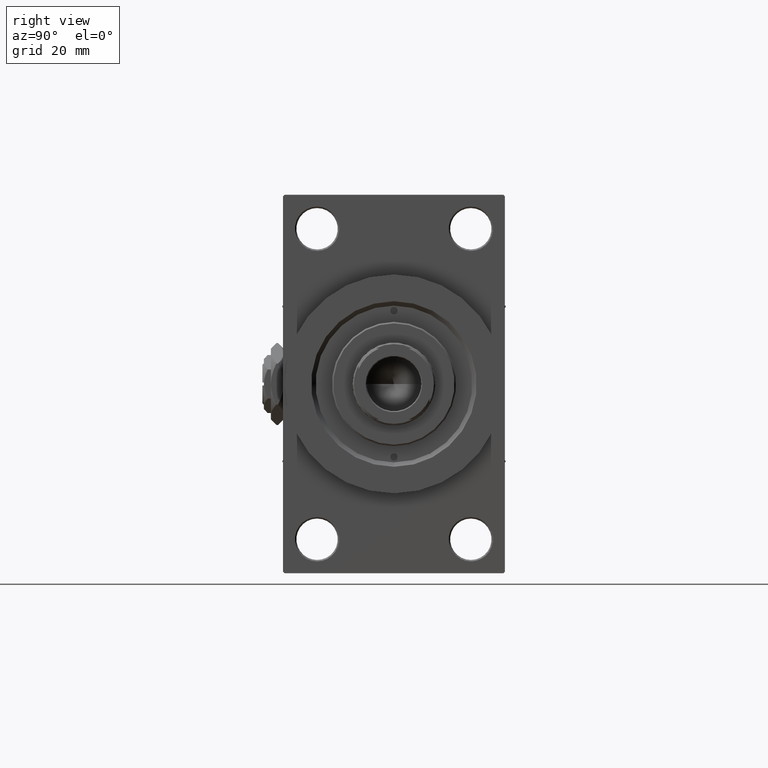
[diagram: clean part render]
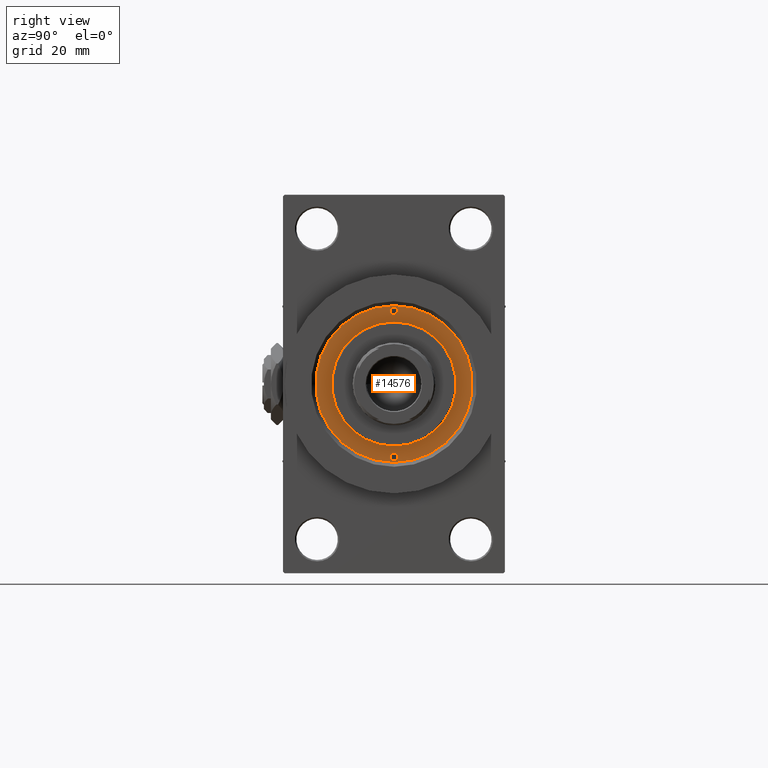
[diagram: same view with one face highlighted and labeled with its STEP entity id]
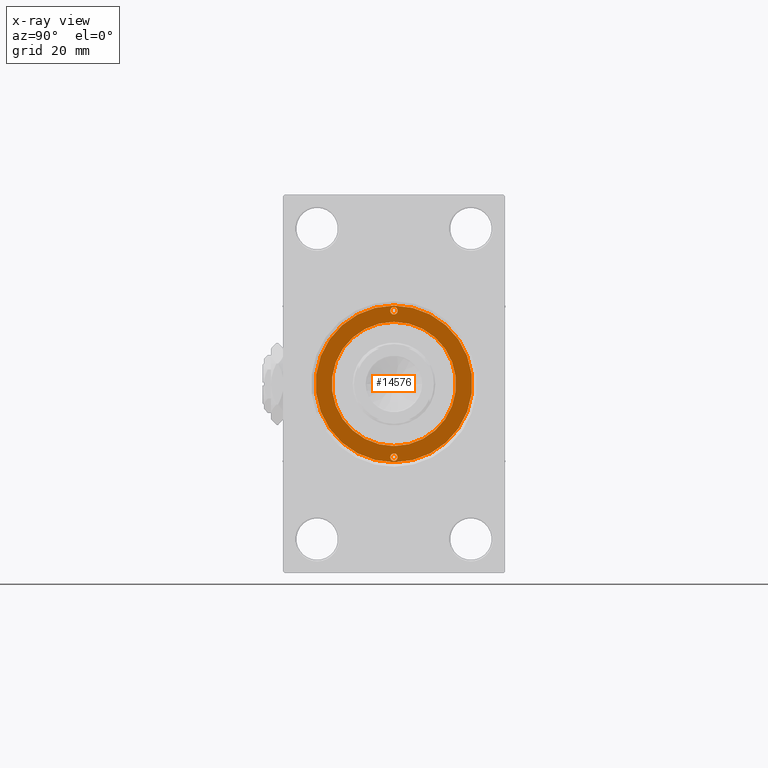
[diagram: x-ray of the same camera — body ghosted, the highlighted face saturated]
A machine part, right view. The second image highlights one B-rep face of the part: STEP entity #14576.
The next image is the same camera in x-ray: the body ghosted, the highlighted face saturated — about 0% of this face is hidden behind the body in this view.
In plain terms, the highlighted planar face has unit normal (1, -0, -0).
Its self-contained STEP definition (entity closure, byte-faithful):
#205 = CARTESIAN_POINT ( 'NONE',  ( 23.50000000000000355, 1.530808498934188612E-16, 43.25999999999999801 ) ) ;
#296 = CIRCLE ( 'NONE', #35260, 26.50000000000000355 ) ;
#326 = FACE_BOUND ( 'NONE', #9752, .T. ) ;
#1049 = CARTESIAN_POINT ( 'NONE',  ( -26.00000000000000000, 1.530808498934188612E-16, 43.25999999999999801 ) ) ;
#2781 = CARTESIAN_POINT ( 'NONE',  ( 21.00000000000000000, 2.571758278209441661E-15, 43.25999999999999801 ) ) ;
#2972 = EDGE_CURVE ( 'NONE', #6021, #33407, #17340, .T. ) ;
#3818 = PLANE ( 'NONE',  #26331 ) ;
#4669 = CARTESIAN_POINT ( 'NONE',  ( 0.000000000000000000, 0.000000000000000000, 43.25999999999999801 ) ) ;
#4983 = DIRECTION ( 'NONE',  ( -0.000000000000000000, -0.000000000000000000, 1.000000000000000000 ) ) ;
#5029 = VERTEX_POINT ( 'NONE', #1049 ) ;
#5515 = ORIENTED_EDGE ( 'NONE', *, *, #10786, .F. ) ;
#6021 = VERTEX_POINT ( 'NONE', #10981 ) ;
#8260 = ORIENTED_EDGE ( 'NONE', *, *, #44557, .F. ) ;
#9752 = EDGE_LOOP ( 'NONE', ( #37822, #9832 ) ) ;
#9832 = ORIENTED_EDGE ( 'NONE', *, *, #12233, .F. ) ;
#10285 = DIRECTION ( 'NONE',  ( 0.000000000000000000, 0.000000000000000000, 1.000000000000000000 ) ) ;
#10786 = EDGE_CURVE ( 'NONE', #33407, #6021, #29424, .T. ) ;
#10981 = CARTESIAN_POINT ( 'NONE',  ( -21.00000000000000000, 0.000000000000000000, 43.25999999999999801 ) ) ;
#11361 = CIRCLE ( 'NONE', #12957, 26.50000000000000355 ) ;
#12046 = DIRECTION ( 'NONE',  ( 0.000000000000000000, 0.000000000000000000, 1.000000000000000000 ) ) ;
#12233 = EDGE_CURVE ( 'NONE', #41482, #42705, #39806, .T. ) ;
#12618 = CARTESIAN_POINT ( 'NONE',  ( -23.50000000000000355, 0.000000000000000000, 43.25999999999999801 ) ) ;
#12957 = AXIS2_PLACEMENT_3D ( 'NONE', #28909, #10285, #14476 ) ;
#13298 = CIRCLE ( 'NONE', #29155, 1.249999999999997558 ) ;
#14476 = DIRECTION ( 'NONE',  ( 1.000000000000000000, 0.000000000000000000, 0.000000000000000000 ) ) ;
#14576 = ADVANCED_FACE ( 'NONE', ( #34364, #326, #45810, #15245 ), #3818, .T. ) ;
#15245 = FACE_OUTER_BOUND ( 'NONE', #34562, .T. ) ;
#15492 = DIRECTION ( 'NONE',  ( 1.000000000000000000, 0.000000000000000000, -0.000000000000000000 ) ) ;
#17340 = CIRCLE ( 'NONE', #38752, 21.00000000000000000 ) ;
#17351 = DIRECTION ( 'NONE',  ( -0.000000000000000000, -0.000000000000000000, 1.000000000000000000 ) ) ;
#18171 = EDGE_LOOP ( 'NONE', ( #42121, #5515 ) ) ;
#19517 = DIRECTION ( 'NONE',  ( 1.000000000000000000, 0.000000000000000000, 0.000000000000000000 ) ) ;
#21112 = EDGE_CURVE ( 'NONE', #28003, #41089, #296, .T. ) ;
#21294 = CARTESIAN_POINT ( 'NONE',  ( -26.50000000000000355, 0.000000000000000000, 43.25999999999999801 ) ) ;
#22707 = CARTESIAN_POINT ( 'NONE',  ( 0.000000000000000000, 0.000000000000000000, 43.25999999999999801 ) ) ;
#22803 = DIRECTION ( 'NONE',  ( 0.000000000000000000, 0.000000000000000000, 1.000000000000000000 ) ) ;
#24085 = CARTESIAN_POINT ( 'NONE',  ( 24.75000000000000000, 0.000000000000000000, 43.25999999999999801 ) ) ;
#24236 = VERTEX_POINT ( 'NONE', #12618 ) ;
#24536 = CIRCLE ( 'NONE', #45103, 1.249999999999997558 ) ;
#25268 = DIRECTION ( 'NONE',  ( -0.000000000000000000, -0.000000000000000000, 1.000000000000000000 ) ) ;
#26331 = AXIS2_PLACEMENT_3D ( 'NONE', #22707, #12046, #15492 ) ;
#26851 = CARTESIAN_POINT ( 'NONE',  ( -24.75000000000000000, 0.000000000000000000, 43.25999999999999801 ) ) ;
#27645 = CARTESIAN_POINT ( 'NONE',  ( 24.75000000000000000, 0.000000000000000000, 43.25999999999999801 ) ) ;
#28003 = VERTEX_POINT ( 'NONE', #21294 ) ;
#28566 = EDGE_CURVE ( 'NONE', #42705, #41482, #13298, .T. ) ;
#28909 = CARTESIAN_POINT ( 'NONE',  ( 0.000000000000000000, 0.000000000000000000, 43.25999999999999801 ) ) ;
#29155 = AXIS2_PLACEMENT_3D ( 'NONE', #27645, #39077, #31118 ) ;
#29424 = CIRCLE ( 'NONE', #46889, 21.00000000000000000 ) ;
#30483 = CIRCLE ( 'NONE', #43217, 1.249999999999997558 ) ;
#30942 = CARTESIAN_POINT ( 'NONE',  ( 0.000000000000000000, 0.000000000000000000, 43.25999999999999801 ) ) ;
#31118 = DIRECTION ( 'NONE',  ( 1.000000000000000000, 0.000000000000000000, 0.000000000000000000 ) ) ;
#31872 = EDGE_CURVE ( 'NONE', #5029, #24236, #24536, .T. ) ;
#33407 = VERTEX_POINT ( 'NONE', #2781 ) ;
#34195 = EDGE_LOOP ( 'NONE', ( #8260, #34809 ) ) ;
#34364 = FACE_BOUND ( 'NONE', #34195, .T. ) ;
#34562 = EDGE_LOOP ( 'NONE', ( #36783, #39811 ) ) ;
#34809 = ORIENTED_EDGE ( 'NONE', *, *, #31872, .F. ) ;
#35260 = AXIS2_PLACEMENT_3D ( 'NONE', #4669, #22803, #38456 ) ;
#35559 = CARTESIAN_POINT ( 'NONE',  ( 26.50000000000000355, 3.245314017740486554E-15, 43.25999999999999801 ) ) ;
#36723 = DIRECTION ( 'NONE',  ( 1.000000000000000000, 0.000000000000000000, 0.000000000000000000 ) ) ;
#36783 = ORIENTED_EDGE ( 'NONE', *, *, #21112, .T. ) ;
#37151 = DIRECTION ( 'NONE',  ( 0.000000000000000000, 0.000000000000000000, 1.000000000000000000 ) ) ;
#37174 = CARTESIAN_POINT ( 'NONE',  ( -24.75000000000000000, 0.000000000000000000, 43.25999999999999801 ) ) ;
#37822 = ORIENTED_EDGE ( 'NONE', *, *, #28566, .F. ) ;
#38456 = DIRECTION ( 'NONE',  ( 1.000000000000000000, 0.000000000000000000, 0.000000000000000000 ) ) ;
#38752 = AXIS2_PLACEMENT_3D ( 'NONE', #49059, #37151, #45073 ) ;
#39026 = DIRECTION ( 'NONE',  ( 1.000000000000000000, 0.000000000000000000, 0.000000000000000000 ) ) ;
#39077 = DIRECTION ( 'NONE',  ( -0.000000000000000000, -0.000000000000000000, 1.000000000000000000 ) ) ;
#39150 = DIRECTION ( 'NONE',  ( 0.000000000000000000, 0.000000000000000000, 1.000000000000000000 ) ) ;
#39806 = CIRCLE ( 'NONE', #46085, 1.249999999999997558 ) ;
#39811 = ORIENTED_EDGE ( 'NONE', *, *, #42064, .T. ) ;
#41089 = VERTEX_POINT ( 'NONE', #35559 ) ;
#41482 = VERTEX_POINT ( 'NONE', #205 ) ;
#42064 = EDGE_CURVE ( 'NONE', #41089, #28003, #11361, .T. ) ;
#42121 = ORIENTED_EDGE ( 'NONE', *, *, #2972, .F. ) ;
#42705 = VERTEX_POINT ( 'NONE', #43220 ) ;
#43217 = AXIS2_PLACEMENT_3D ( 'NONE', #26851, #4983, #39026 ) ;
#43220 = CARTESIAN_POINT ( 'NONE',  ( 26.00000000000000000, 0.000000000000000000, 43.25999999999999801 ) ) ;
#44557 = EDGE_CURVE ( 'NONE', #24236, #5029, #30483, .T. ) ;
#45073 = DIRECTION ( 'NONE',  ( 1.000000000000000000, 0.000000000000000000, 0.000000000000000000 ) ) ;
#45103 = AXIS2_PLACEMENT_3D ( 'NONE', #37174, #25268, #48366 ) ;
#45810 = FACE_BOUND ( 'NONE', #18171, .T. ) ;
#46085 = AXIS2_PLACEMENT_3D ( 'NONE', #24085, #17351, #36723 ) ;
#46889 = AXIS2_PLACEMENT_3D ( 'NONE', #30942, #39150, #19517 ) ;
#48366 = DIRECTION ( 'NONE',  ( 1.000000000000000000, 0.000000000000000000, 0.000000000000000000 ) ) ;
#49059 = CARTESIAN_POINT ( 'NONE',  ( 0.000000000000000000, 0.000000000000000000, 43.25999999999999801 ) ) ;